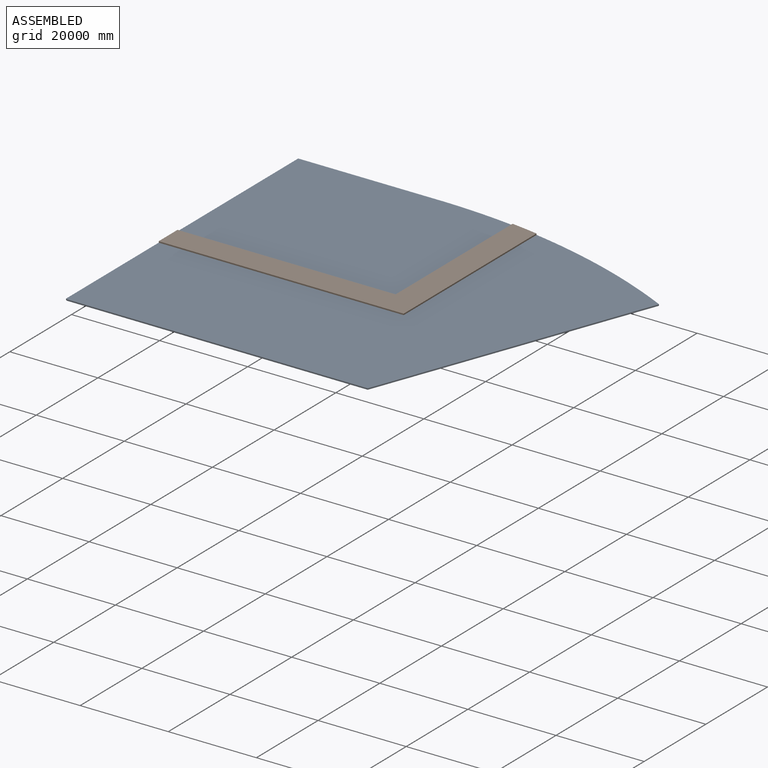
[diagram: assembled view]
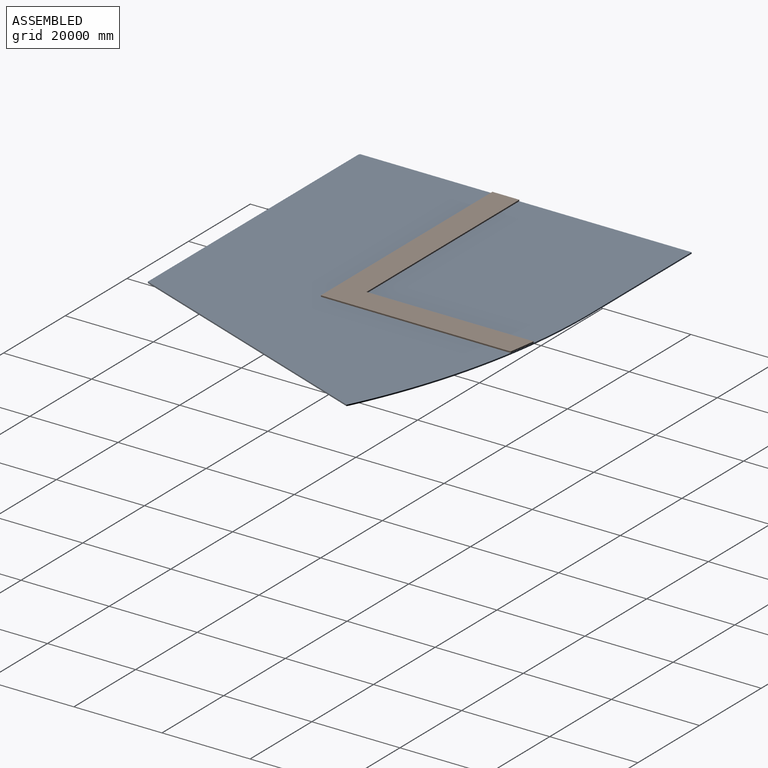
[diagram: assembled view, second angle]
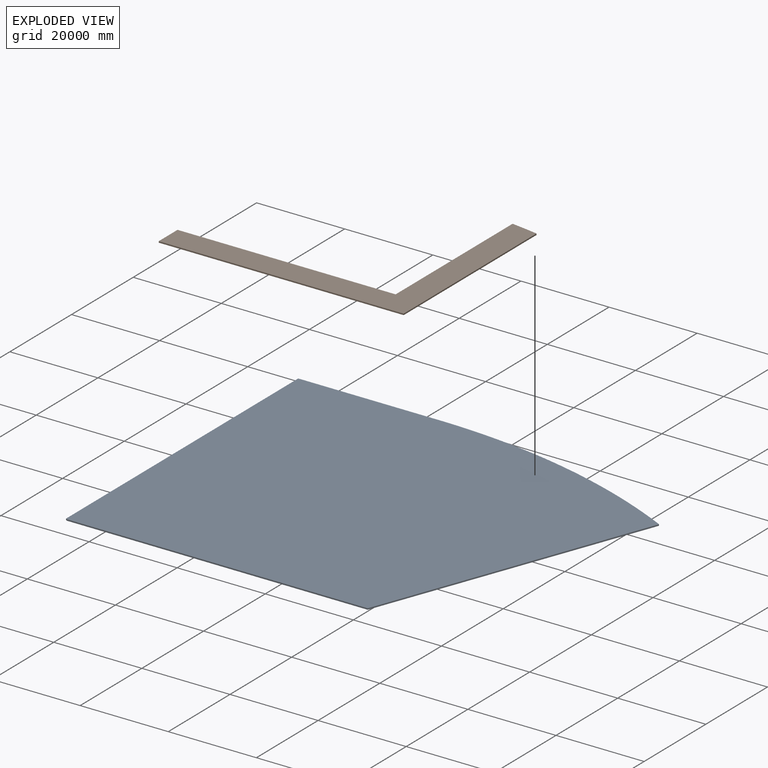
[diagram: exploded view]
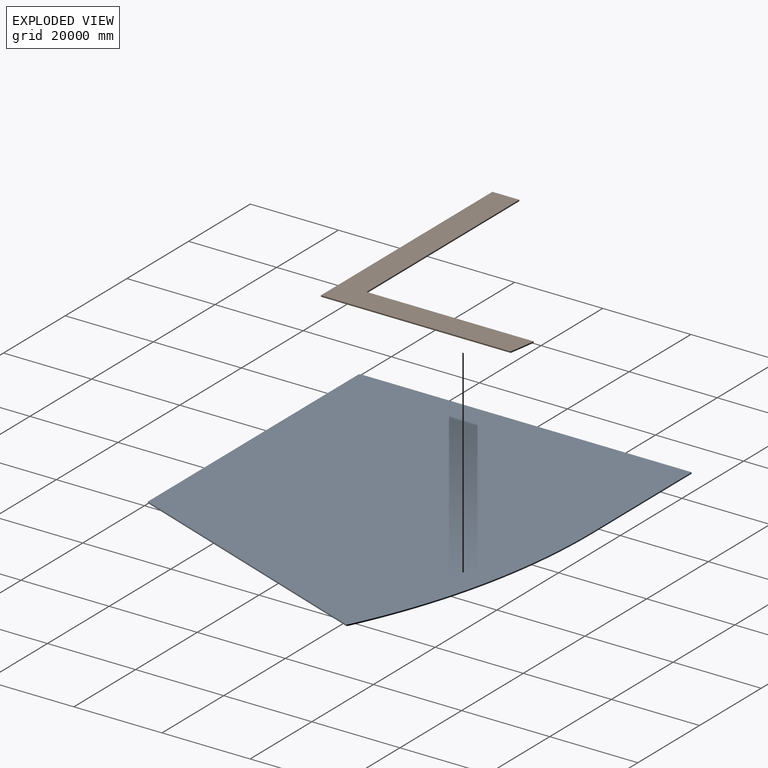
[diagram: exploded view, second angle]
ASSEMBLY  parts=2 mates=3
PART A: 11 faces, bbox 91751.4x75413.2x304.8 mm
  f0: cylinder r=135703.06mm len=304.8mm, axis (0,0,-1), area 72788.7mm2, adj f1,f8,f9,f10
  f1: plane 304.8x22.32mm, normal (0.94,-0.35,0), area 7272.2mm2, adj f0,f2,f9,f10
  f2: cylinder r=135703.06mm len=58678.96mm, axis (0,0,-1), area 18539022.3mm2, adj f1,f3,f9,f10
  f3: plane 32866.58x304.8mm, normal (0,1,0), area 10017734.8mm2, adj f2,f4,f9,f10
  f4: plane 75285.6x304.8mm, normal (-1,0,0), area 22947050.9mm2, adj f3,f5,f9,f10
  f5: plane 304.8x205.9mm, normal (0,-1,0), area 62758.3mm2, adj f4,f6,f9,f10
  f6: plane 304.8x127.64mm, normal (-1,0,0), area 38903.4mm2, adj f5,f7,f9,f10
  f7: plane 68378.83x304.8mm, normal (0,-1,0), area 20841868mm2, adj f6,f8,f9,f10
  f8: plane 61329.78x23166.72mm, normal (0.94,-0.35,0), area 19982514.9mm2, adj f0,f7,f9,f10
  f9: plane 91751.45x75413.24mm, normal (0,0,1), area 5933295053.3mm2, adj f0,f1,f2,f3,f4,f5,f6,f7
  f10: plane 91751.45x75413.24mm, normal (0,0,-1), area 5933295053.3mm2, adj f0,f1,f2,f3,f4,f5,f6,f7
PART B: 8 faces, bbox 55600.6x44010.6x304.8 mm
  f0: plane 49504.6x304.8mm, normal (0,1,0), area 15089002.1mm2, adj f1,f5,f6,f7
  f1: plane 6096x304.8mm, normal (-1,0,0), area 1858060.8mm2, adj f0,f2,f6,f7
  f2: plane 55600.6x304.8mm, normal (0,-1,0), area 16947062.9mm2, adj f1,f3,f6,f7
  f3: plane 43057.34x304.8mm, normal (1,0,0), area 13123878.5mm2, adj f2,f4,f6,f7
  f4: cylinder r=135703.06mm len=6096mm, axis (0,0,-1), area 1880803.1mm2, adj f3,f5,f6,f7
  f5: plane 37914.6x304.8mm, normal (-1,0,0), area 11556370.4mm2, adj f0,f4,f6,f7
  f6: plane 55600.6x44010.6mm, normal (0,0,1), area 567307406.4mm2, adj f0,f1,f2,f3,f4,f5
  f7: plane 55600.6x44010.6mm, normal (0,0,-1), area 567307406.4mm2, adj f0,f1,f2,f3,f4,f5
PLACE A t=(-5057.73,-884.89,7735.91)mm
PLACE B t=(-19048.97,17569,8040.71)mm
MATE planar B.f7 <-> A.f9  axis (0,0,-1) through (-9000.7,4067.47,8040.71)mm
MATE planar B.f4 <-> A.f2  axis (0,0,-1) through (-15167.33,-98252.95,8040.71)mm
MATE planar B.f1 <-> A.f4  axis (-1,0,0) through (-46759.68,-4699.87,8193.11)mm
